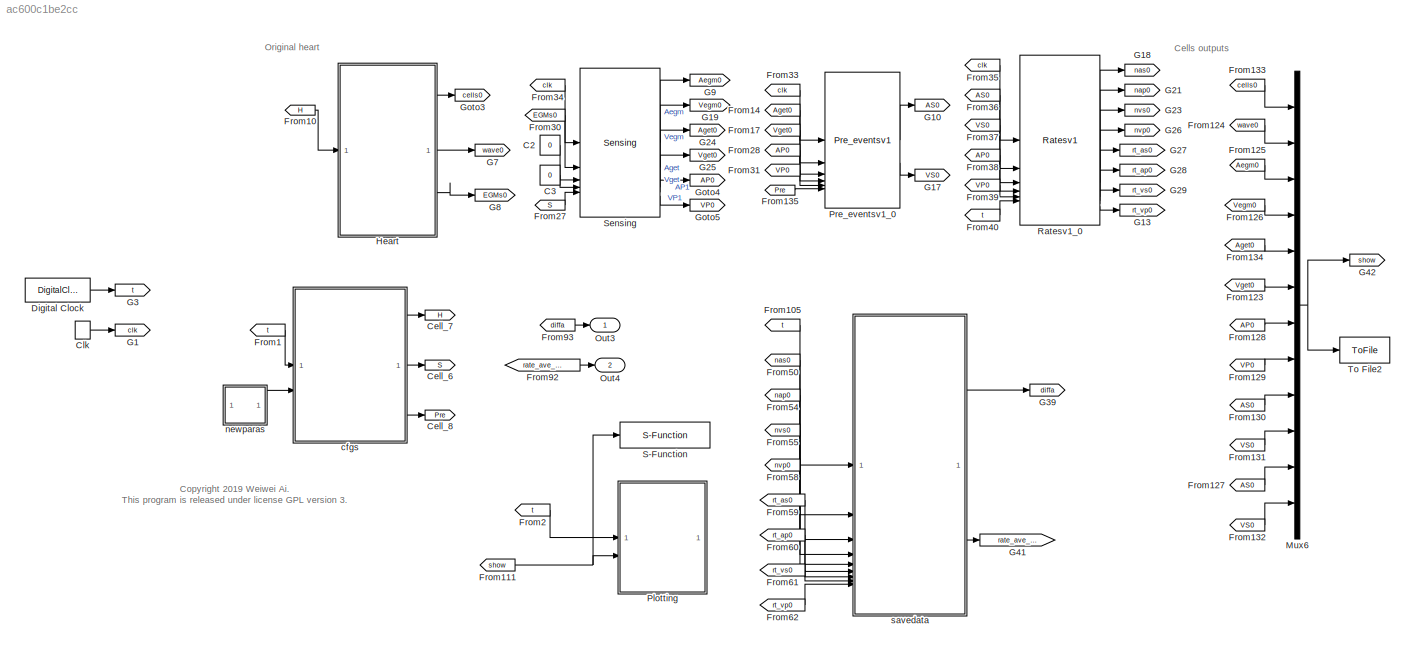
MODEL slx_ac600c1be2cc
KIND model
CONFIG AbsTol = auto
CONFIG EnableMultiTasking = off
CONFIG FixedStep = 0.0005
CONFIG MaxStep = auto
CONFIG MinStep = auto
CONFIG RelTol = 1e-3
CONFIG SampleTimeConstraint = Unconstrained
CONFIG SolverName = FixedStepAuto
CONFIG StartTime = 0.0
CONFIG StopTime = 4
BLOCK [Constant] C2
  Value = 0
BLOCK [Constant] C3
  Value = 0
BLOCK [Goto] Cell_6
  GotoTag = S
BLOCK [Goto] Cell_7
  GotoTag = H
BLOCK [Goto] Cell_8
  GotoTag = Pre
BLOCK [DiscretePulseGenerator] Clk
  Period = 1
  PulseType = Time based
  PulseWidth = 50
BLOCK [DigitalClock] Digital Clock
  SampleTime = stepsize
BLOCK [From] From1
  GotoTag = t
BLOCK [From] From10
  GotoTag = H
BLOCK [From] From105
  GotoTag = t
BLOCK [From] From111
  GotoTag = show
BLOCK [From] From123
  GotoTag = Vget0
BLOCK [From] From124
  GotoTag = wave0
BLOCK [From] From125
  GotoTag = Aegm0
BLOCK [From] From126
  GotoTag = Vegm0
BLOCK [From] From127
  GotoTag = AS0
BLOCK [From] From128
  GotoTag = AP0
BLOCK [From] From129
  GotoTag = VP0
BLOCK [From] From130
  GotoTag = AS0
BLOCK [From] From131
  GotoTag = VS0
BLOCK [From] From132
  GotoTag = VS0
BLOCK [From] From133
  GotoTag = cells0
BLOCK [From] From134
  GotoTag = Aget0
BLOCK [From] From135
  GotoTag = Pre
BLOCK [From] From14
  GotoTag = Aget0
BLOCK [From] From17
  GotoTag = Vget0
BLOCK [From] From2
  GotoTag = t
BLOCK [From] From27
  GotoTag = S
BLOCK [From] From28
  GotoTag = AP0
BLOCK [From] From30
  GotoTag = EGMs0
BLOCK [From] From31
  GotoTag = VP0
BLOCK [From] From33
  GotoTag = clk
BLOCK [From] From34
  GotoTag = clk
BLOCK [From] From35
  GotoTag = clk
BLOCK [From] From36
  GotoTag = AS0
BLOCK [From] From37
  GotoTag = VS0
BLOCK [From] From38
  GotoTag = AP0
BLOCK [From] From39
  GotoTag = VP0
BLOCK [From] From40
  GotoTag = t
BLOCK [From] From50
  GotoTag = nas0
BLOCK [From] From54
  GotoTag = nap0
BLOCK [From] From55
  GotoTag = nvs0
BLOCK [From] From58
  GotoTag = nvp0
BLOCK [From] From59
  GotoTag = rt_as0
BLOCK [From] From60
  GotoTag = rt_ap0
BLOCK [From] From61
  GotoTag = rt_vs0
BLOCK [From] From62
  GotoTag = rt_vp0
BLOCK [From] From92
  GotoTag = rate_ave_vp
BLOCK [From] From93
  GotoTag = diffa
BLOCK [Goto] G1
  GotoTag = clk
BLOCK [Goto] G10
  GotoTag = AS0
BLOCK [Goto] G13
  GotoTag = rt_vp0
BLOCK [Goto] G17
  GotoTag = VS0
BLOCK [Goto] G18
  GotoTag = nas0
BLOCK [Goto] G19
  GotoTag = Vegm0
BLOCK [Goto] G21
  GotoTag = nap0
BLOCK [Goto] G23
  GotoTag = nvs0
BLOCK [Goto] G24
  GotoTag = Aget0
BLOCK [Goto] G25
  GotoTag = Vget0
BLOCK [Goto] G26
  GotoTag = nvp0
BLOCK [Goto] G27
  GotoTag = rt_as0
BLOCK [Goto] G28
  GotoTag = rt_ap0
BLOCK [Goto] G29
  GotoTag = rt_vs0
BLOCK [Goto] G3
  GotoTag = t
BLOCK [Goto] G39
  GotoTag = diffa
BLOCK [Goto] G41
  GotoTag = rate_ave_vp
BLOCK [Goto] G42
  GotoTag = show
BLOCK [Goto] G7
  GotoTag = wave0
BLOCK [Goto] G8
  GotoTag = EGMs0
BLOCK [Goto] G9
  GotoTag = Aegm0
BLOCK [Goto] Goto3
  GotoTag = cells0
BLOCK [Goto] Goto4
  GotoTag = AP0
BLOCK [Goto] Goto5
  GotoTag = VP0
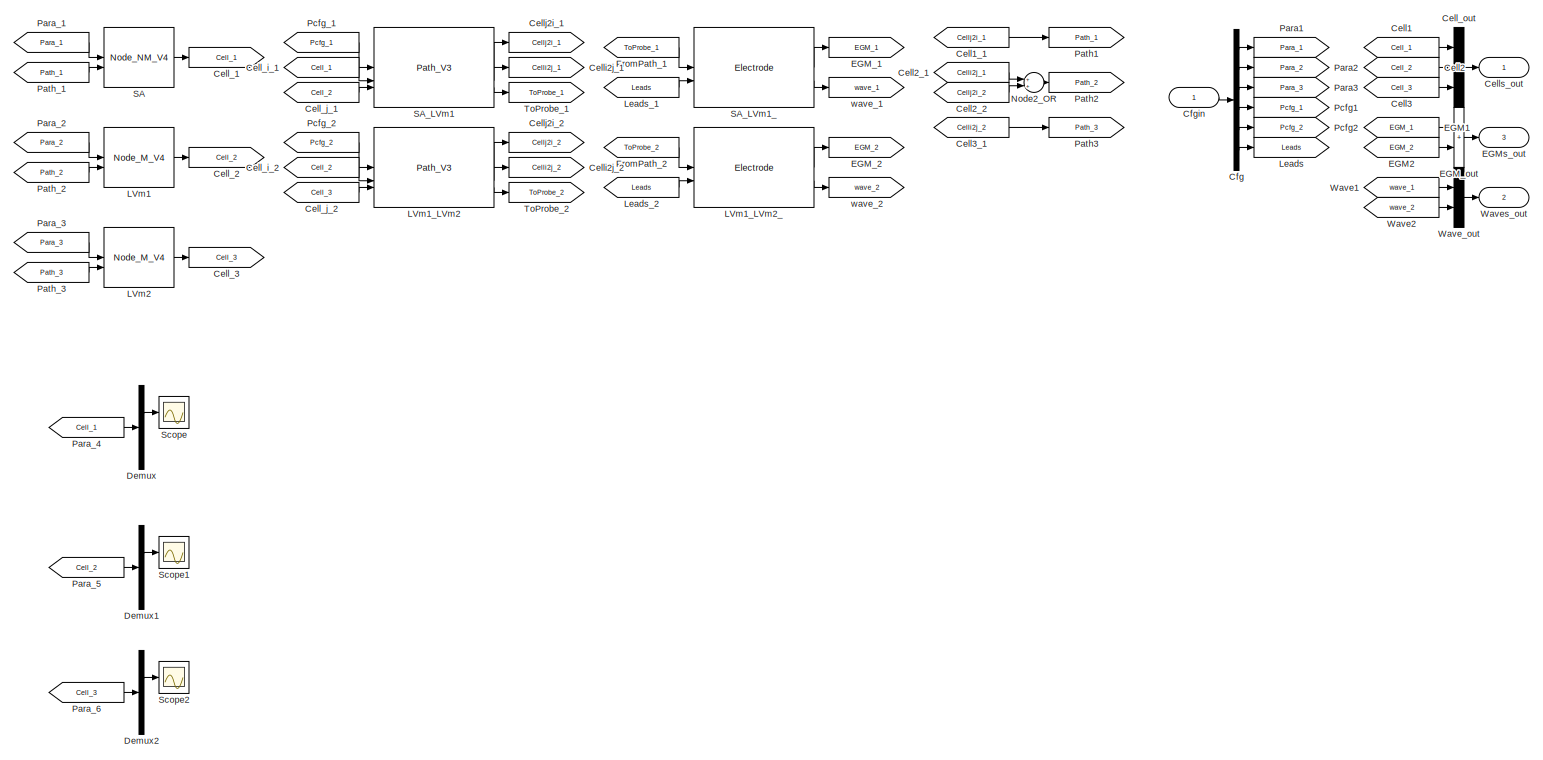
[diagram: Heart - part 1/1, most of the canvas]
BLOCK [SubSystem] Heart
BLOCK [From] Heart/Cell1
  GotoTag = Cell_1
BLOCK [From] Heart/Cell1_1
  GotoTag = Cellj2i_1
BLOCK [From] Heart/Cell2
  GotoTag = Cell_2
BLOCK [From] Heart/Cell2_1
  GotoTag = Celli2j_1
BLOCK [From] Heart/Cell2_2
  GotoTag = Cellj2i_2
BLOCK [From] Heart/Cell3
  GotoTag = Cell_3
BLOCK [From] Heart/Cell3_1
  GotoTag = Celli2j_2
BLOCK [Goto] Heart/Cell_1
  GotoTag = Cell_1
BLOCK [Goto] Heart/Cell_2
  GotoTag = Cell_2
BLOCK [Goto] Heart/Cell_3
  GotoTag = Cell_3
BLOCK [From] Heart/Cell_i_1
  GotoTag = Cell_1
BLOCK [From] Heart/Cell_i_2
  GotoTag = Cell_2
BLOCK [From] Heart/Cell_j_1
  GotoTag = Cell_2
BLOCK [From] Heart/Cell_j_2
  GotoTag = Cell_3
BLOCK [Mux] Heart/Cell_out
  DisplayOption = bar
  Inputs = 3
BLOCK [Goto] Heart/Celli2j_1
  GotoTag = Celli2j_1
BLOCK [Goto] Heart/Celli2j_2
  GotoTag = Celli2j_2
BLOCK [Goto] Heart/Cellj2i_1
  GotoTag = Cellj2i_1
BLOCK [Goto] Heart/Cellj2i_2
  GotoTag = Cellj2i_2
BLOCK [Outport] Heart/Cells_out
BLOCK [Demux] Heart/Cfg
  Outputs = [50,25,25,11,11,28]
BLOCK [Inport] Heart/Cfgin
BLOCK [Demux] Heart/Demux
  Outputs = 5
BLOCK [Demux] Heart/Demux1
  Outputs = 5
BLOCK [Demux] Heart/Demux2
  Outputs = 5
BLOCK [From] Heart/EGM1
  GotoTag = EGM_1
BLOCK [From] Heart/EGM2
  GotoTag = EGM_2
BLOCK [Goto] Heart/EGM_1
  GotoTag = EGM_1
BLOCK [Goto] Heart/EGM_2
  GotoTag = EGM_2
BLOCK [Sum] Heart/EGM_out
  IconShape = rectangular
  Inputs = 2
BLOCK [Outport] Heart/EGMs_out
  Port = 3
BLOCK [From] Heart/FromPath_1
  GotoTag = ToProbe_1
BLOCK [From] Heart/FromPath_2
  GotoTag = ToProbe_2
BLOCK [Reference] Heart/LVm1  REF=Libs/Node_M_V4
  SourceBlock = Libs/Node_M_V4
  SourceType = SubSystem
BLOCK [Reference] Heart/LVm1_LVm2  REF=Libs/Path_V3
  SourceBlock = Libs/Path_V3
  SourceType = SubSystem
BLOCK [Reference] Heart/LVm1_LVm2_  REF=Libs/Electrode
  SourceBlock = Libs/Electrode
  SourceType = SubSystem
BLOCK [Reference] Heart/LVm2  REF=Libs/Node_M_V4
  SourceBlock = Libs/Node_M_V4
  SourceType = SubSystem
BLOCK [Goto] Heart/Leads
  GotoTag = Leads
BLOCK [From] Heart/Leads_1
  GotoTag = Leads
BLOCK [From] Heart/Leads_2
  GotoTag = Leads
BLOCK [Sum] Heart/Node2_OR
  Inputs = 2
BLOCK [Goto] Heart/Para1
  GotoTag = Para_1
BLOCK [Goto] Heart/Para2
  GotoTag = Para_2
BLOCK [Goto] Heart/Para3
  GotoTag = Para_3
BLOCK [From] Heart/Para_1
  GotoTag = Para_1
BLOCK [From] Heart/Para_2
  GotoTag = Para_2
BLOCK [From] Heart/Para_3
  GotoTag = Para_3
BLOCK [From] Heart/Para_4
  GotoTag = Cell_1
BLOCK [From] Heart/Para_5
  GotoTag = Cell_2
BLOCK [From] Heart/Para_6
  GotoTag = Cell_3
BLOCK [Goto] Heart/Path1
  GotoTag = Path_1
BLOCK [Goto] Heart/Path2
  GotoTag = Path_2
BLOCK [Goto] Heart/Path3
  GotoTag = Path_3
BLOCK [From] Heart/Path_1
  GotoTag = Path_1
BLOCK [From] Heart/Path_2
  GotoTag = Path_2
BLOCK [From] Heart/Path_3
  GotoTag = Path_3
BLOCK [Goto] Heart/Pcfg1
  GotoTag = Pcfg_1
BLOCK [Goto] Heart/Pcfg2
  GotoTag = Pcfg_2
BLOCK [From] Heart/Pcfg_1
  GotoTag = Pcfg_1
BLOCK [From] Heart/Pcfg_2
  GotoTag = Pcfg_2
BLOCK [Reference] Heart/SA  REF=Libs/Node_NM_V4
  SourceBlock = Libs/Node_NM_V4
  SourceType = SubSystem
BLOCK [Reference] Heart/SA_LVm1  REF=Libs/Path_V3
  SourceBlock = Libs/Path_V3
  SourceType = SubSystem
BLOCK [Reference] Heart/SA_LVm1_  REF=Libs/Electrode
  SourceBlock = Libs/Electrode
  SourceType = SubSystem
BLOCK [Scope] Heart/Scope
  ActiveDisplayYMaximum = 138.22895785342837
  ActiveDisplayYMinimum = -15.358773094825372
  DataLogging = on
  Floating = off
  GraphicalSettings = {"Style":{"BackgroundColor":[0.12941176470588237,0.12941176470588237,0.12941176470588237],"AxesColor":[0.07058823529411765,0.07058823529411765,0.07058823529411765],"LabelsColor":[0.8509803921568627,0.8509803921568627,0.8509803921568627],"PreserveColors":false,"Visible":[true],"LineStyle":["-"],"LineWidth":[1.5],"BarWidth":[0.9],"LineColor":["auto"],"LineFaceAlpha":[1],"LineEdgeAlpha":[1],"Marker":...<+1998ch>
  MultipleDisplayCache = [{"MaxYLimMag":138.22895785342837,"MaxYLimReal":138.22895785342837,"MinYLimMag":0,"MinYLimReal":-15.358773094825372,"PlotAsMagnitudePhase":false,"ShowGrid":true,"ShowLegend":false,"Title":"%<SignalLabel>","YLabel":""}]  <repeated x3 — deduplicated; at blocks: Scope, Scope1, Scope2>
  NumInputPorts = 1
  ScopeFrameLocation = window
  WasSavedAsWebScope = on
  WindowPosition = [573.000000,323.000000,560.000000,429.000000,]
BLOCK [Scope] Heart/Scope1
  ActiveDisplayYMaximum = 138.22895785342837
  ActiveDisplayYMinimum = -15.358773094825372
  DataLogging = on
  DataLoggingVariableName = ScopeData1
  Floating = off
  GraphicalSettings = {"Style":{"BackgroundColor":[0.12941176470588237,0.12941176470588237,0.12941176470588237],"AxesColor":[0.07058823529411765,0.07058823529411765,0.07058823529411765],"LabelsColor":[0.8509803921568627,0.8509803921568627,0.8509803921568627],"PreserveColors":false,"Visible":[true,true,true,true,true,true,true],"LineStyle":["-","-","-","-","-","-","-"],"LineWidth":[1.5,1.5,1.5,1.5,1.5,1.5,1.5],"BarWidth...<+2580ch>
  NumInputPorts = 1
  ScopeFrameLocation = window
  WasSavedAsWebScope = on
  WindowPosition = [573.000000,323.000000,560.000000,420.000000,]
BLOCK [Scope] Heart/Scope2
  ActiveDisplayYMaximum = 138.22895785342837
  ActiveDisplayYMinimum = -15.358773094825372
  DataLogging = on
  DataLoggingVariableName = ScopeData2
  Floating = off
  GraphicalSettings = {"Style":{"BackgroundColor":[0.12941176470588237,0.12941176470588237,0.12941176470588237],"AxesColor":[0.07058823529411765,0.07058823529411765,0.07058823529411765],"LabelsColor":[0.8509803921568627,0.8509803921568627,0.8509803921568627],"PreserveColors":false,"Visible":[true,true,true,true,true,true,true],"LineStyle":["-","-","-","-","-","-","-"],"LineWidth":[1.5,1.5,1.5,1.5,1.5,1.5,1.5],"BarWidth...<+2580ch>
  NumInputPorts = 1
  ScopeFrameLocation = window
  WasSavedAsWebScope = on
  WindowPosition = [573.000000,323.000000,560.000000,420.000000,]
BLOCK [Goto] Heart/ToProbe_1
  GotoTag = ToProbe_1
BLOCK [Goto] Heart/ToProbe_2
  GotoTag = ToProbe_2
BLOCK [From] Heart/Wave1
  GotoTag = wave_1
BLOCK [From] Heart/Wave2
  GotoTag = wave_2
BLOCK [Mux] Heart/Wave_out
  DisplayOption = bar
  Inputs = 2
BLOCK [Outport] Heart/Waves_out
  Port = 2
BLOCK [Goto] Heart/wave_1
  GotoTag = wave_1
BLOCK [Goto] Heart/wave_2
  GotoTag = wave_2
BLOCK [Mux] Mux6
  DisplayOption = bar
  Inputs = 12
BLOCK [Outport] Out3
BLOCK [Outport] Out4
  Port = 2
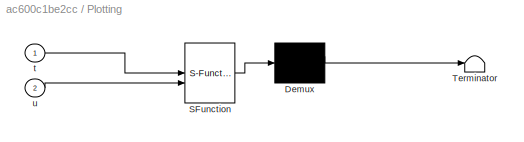
BLOCK [SubSystem] Plotting
  ErrorFcn = Stateflow.Translate.translate
  PermitHierarchicalResolution = ExplicitOnly
  SFBlockType = MATLAB Function
  SystemSampleTime = stepsize*5
  TreatAsAtomicUnit = on
BLOCK [Demux] Plotting/ Demux 
  Outputs = 1
BLOCK [S-Function] Plotting/ SFunction 
  EnableBusSupport = off
  FunctionName = sf_sfun
  PortCounts = [2 1]
  SFcnIsStateOwnerBlock = off
  SFunctionDeploymentMode = off
  Tag = Stateflow S-Function 2
BLOCK [Terminator] Plotting/ Terminator 
BLOCK [Inport] Plotting/t
BLOCK [Inport] Plotting/u
  Port = 2
BLOCK [Reference] Pre_eventsv1_0  REF=Libs_unified/Pre_eventsv1
  SourceBlock = Libs_unified/Pre_eventsv1
  SourceType = SubSystem
BLOCK [Reference] Ratesv1_0  REF=Libs_unified/Ratesv1
  SourceBlock = Libs_unified/Ratesv1
  SourceType = SubSystem
BLOCK [S-Function] S-Function
  Commented = on
  EnableBusSupport = off
  FunctionName = SaveTrace_sfcn
  Parameters = 1
  SFcnIsStateOwnerBlock = off
  SFunctionDeploymentMode = off
BLOCK [Reference] Sensing  REF=Libs_unified/Sensing
  SourceBlock = Libs_unified/Sensing
  SourceType = SubSystem
BLOCK [ToFile] To File2
  Decimation = 2
  Filename = Cells0.mat
  MatrixName = cells
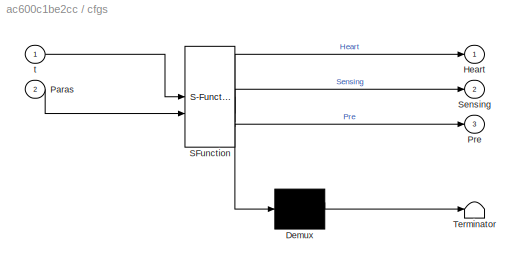
BLOCK [SubSystem] cfgs
  ErrorFcn = Stateflow.Translate.translate
  PermitHierarchicalResolution = ExplicitOnly
  SFBlockType = Chart
  TreatAsAtomicUnit = on
BLOCK [Demux] cfgs/ Demux 
  Outputs = 1
BLOCK [S-Function] cfgs/ SFunction 
  EnableBusSupport = off
  FunctionName = sf_sfun
  Parameters = AVI,LRI,PVARP,URI,VRP,cfg_length,pNode_length,pPath_length
  PortCounts = [2 4]
  SFcnIsStateOwnerBlock = off
  SFunctionDeploymentMode = off
  Tag = Stateflow S-Function 1
BLOCK [Terminator] cfgs/ Terminator 
BLOCK [Outport] cfgs/Heart
BLOCK [Inport] cfgs/Paras
  Port = 2
BLOCK [Outport] cfgs/Pre
  Port = 3
BLOCK [Outport] cfgs/Sensing
  Port = 2
BLOCK [Inport] cfgs/t
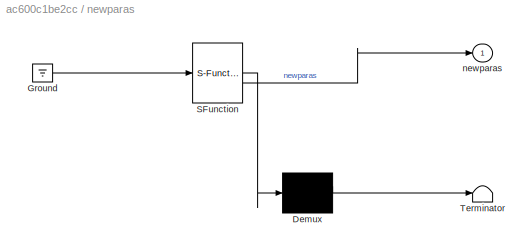
BLOCK [SubSystem] newparas
  ErrorFcn = Stateflow.Translate.translate
  PermitHierarchicalResolution = ExplicitOnly
  SFBlockType = MATLAB Function
  TreatAsAtomicUnit = on
BLOCK [Demux] newparas/ Demux 
  Outputs = 1
BLOCK [Ground] newparas/ Ground 
BLOCK [S-Function] newparas/ SFunction 
  EnableBusSupport = off
  FunctionName = sf_sfun
  Parameters = paras_length
  PortCounts = [1 2]
  SFcnIsStateOwnerBlock = off
  SFunctionDeploymentMode = off
  Tag = Stateflow S-Function 4
BLOCK [Terminator] newparas/ Terminator 
BLOCK [Outport] newparas/newparas
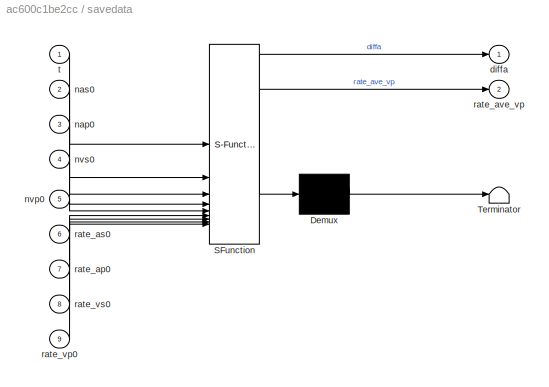
BLOCK [SubSystem] savedata
  ErrorFcn = Stateflow.Translate.translate
  PermitHierarchicalResolution = ExplicitOnly
  SFBlockType = Chart
  TreatAsAtomicUnit = on
BLOCK [Demux] savedata/ Demux 
  Outputs = 1
BLOCK [S-Function] savedata/ SFunction 
  EnableBusSupport = off
  FunctionName = sf_sfun
  PortCounts = [9 3]
  SFcnIsStateOwnerBlock = off
  SFunctionDeploymentMode = off
  Tag = Stateflow S-Function 6
BLOCK [Terminator] savedata/ Terminator 
BLOCK [Outport] savedata/diffa
BLOCK [Inport] savedata/nap0
  Port = 3
BLOCK [Inport] savedata/nas0
  Port = 2
BLOCK [Inport] savedata/nvp0
  Port = 5
BLOCK [Inport] savedata/nvs0
  Port = 4
BLOCK [Inport] savedata/rate_ap0
  Port = 7
BLOCK [Inport] savedata/rate_as0
  Port = 6
BLOCK [Outport] savedata/rate_ave_vp
  Port = 2
BLOCK [Inport] savedata/rate_vp0
  Port = 9
BLOCK [Inport] savedata/rate_vs0
  Port = 8
BLOCK [Inport] savedata/t
ANNOTATION (root): Cells outputs
ANNOTATION (root): <copyright redacted>
ANNOTATION (root): Original heart
LINE C2:1 -> Sensing:3
LINE C3:1 -> Sensing:4
LINE Clk:1 -> G1:1
LINE Digital Clock:1 -> G3:1
LINE From105:1 -> savedata:1
LINE From10:1 -> Heart:1
NET From111:1 -> Plotting:2, S-Function:1
LINE From123:1 -> Mux6:6
LINE From124:1 -> Mux6:2
LINE From125:1 -> Mux6:3
LINE From126:1 -> Mux6:4
LINE From127:1 -> Mux6:11
LINE From128:1 -> Mux6:7
LINE From129:1 -> Mux6:8
LINE From130:1 -> Mux6:9
LINE From131:1 -> Mux6:10
LINE From132:1 -> Mux6:12
LINE From133:1 -> Mux6:1
LINE From134:1 -> Mux6:5
LINE From135:1 -> Pre_eventsv1_0:6
LINE From14:1 -> Pre_eventsv1_0:2
LINE From17:1 -> Pre_eventsv1_0:3
LINE From1:1 -> cfgs:1
LINE From27:1 -> Sensing:5
LINE From28:1 -> Pre_eventsv1_0:4
LINE From2:1 -> Plotting:1
LINE From30:1 -> Sensing:2
LINE From31:1 -> Pre_eventsv1_0:5
LINE From33:1 -> Pre_eventsv1_0:1
LINE From34:1 -> Sensing:1
LINE From35:1 -> Ratesv1_0:1
LINE From36:1 -> Ratesv1_0:2
LINE From37:1 -> Ratesv1_0:3
LINE From38:1 -> Ratesv1_0:4
LINE From39:1 -> Ratesv1_0:5
LINE From40:1 -> Ratesv1_0:6
LINE From50:1 -> savedata:2
LINE From54:1 -> savedata:3
LINE From55:1 -> savedata:4
LINE From58:1 -> savedata:5
LINE From59:1 -> savedata:6
LINE From60:1 -> savedata:7
LINE From61:1 -> savedata:8
LINE From62:1 -> savedata:9
LINE From92:1 -> Out4:1
LINE From93:1 -> Out3:1
LINE Heart/Cell1:1 -> Heart/Cell_out:1
LINE Heart/Cell1_1:1 -> Heart/Path1:1
LINE Heart/Cell2:1 -> Heart/Cell_out:2
LINE Heart/Cell2_1:1 -> Heart/Node2_OR:1
LINE Heart/Cell2_2:1 -> Heart/Node2_OR:2
LINE Heart/Cell3:1 -> Heart/Cell_out:3
LINE Heart/Cell3_1:1 -> Heart/Path3:1
LINE Heart/Cell_i_1:1 -> Heart/SA_LVm1:2
LINE Heart/Cell_i_2:1 -> Heart/LVm1_LVm2:2
LINE Heart/Cell_j_1:1 -> Heart/SA_LVm1:3
LINE Heart/Cell_j_2:1 -> Heart/LVm1_LVm2:3
LINE Heart/Cell_out:1 -> Heart/Cells_out:1
LINE Heart/Cfg:1 -> Heart/Para1:1
LINE Heart/Cfg:2 -> Heart/Para2:1
LINE Heart/Cfg:3 -> Heart/Para3:1
LINE Heart/Cfg:4 -> Heart/Pcfg1:1
LINE Heart/Cfg:5 -> Heart/Pcfg2:1
LINE Heart/Cfg:6 -> Heart/Leads:1
LINE Heart/Cfgin:1 -> Heart/Cfg:1
LINE Heart/Demux1:2 -> Heart/Scope1:1
LINE Heart/Demux2:2 -> Heart/Scope2:1
LINE Heart/Demux:2 -> Heart/Scope:1
LINE Heart/EGM1:1 -> Heart/EGM_out:1
LINE Heart/EGM2:1 -> Heart/EGM_out:2
LINE Heart/EGM_out:1 -> Heart/EGMs_out:1
LINE Heart/FromPath_1:1 -> Heart/SA_LVm1_:1
LINE Heart/FromPath_2:1 -> Heart/LVm1_LVm2_:1
LINE Heart/LVm1:1 -> Heart/Cell_2:1
LINE Heart/LVm1_LVm2:1 -> Heart/Cellj2i_2:1
LINE Heart/LVm1_LVm2:2 -> Heart/Celli2j_2:1
LINE Heart/LVm1_LVm2:3 -> Heart/ToProbe_2:1
LINE Heart/LVm1_LVm2_:1 -> Heart/EGM_2:1
LINE Heart/LVm1_LVm2_:2 -> Heart/wave_2:1
LINE Heart/LVm2:1 -> Heart/Cell_3:1
LINE Heart/Leads_1:1 -> Heart/SA_LVm1_:2
LINE Heart/Leads_2:1 -> Heart/LVm1_LVm2_:2
LINE Heart/Node2_OR:1 -> Heart/Path2:1
LINE Heart/Para_1:1 -> Heart/SA:1
LINE Heart/Para_2:1 -> Heart/LVm1:1
LINE Heart/Para_3:1 -> Heart/LVm2:1
LINE Heart/Para_4:1 -> Heart/Demux:1
LINE Heart/Para_5:1 -> Heart/Demux1:1
LINE Heart/Para_6:1 -> Heart/Demux2:1
LINE Heart/Path_1:1 -> Heart/SA:2
LINE Heart/Path_2:1 -> Heart/LVm1:2
LINE Heart/Path_3:1 -> Heart/LVm2:2
LINE Heart/Pcfg_1:1 -> Heart/SA_LVm1:1
LINE Heart/Pcfg_2:1 -> Heart/LVm1_LVm2:1
LINE Heart/SA:1 -> Heart/Cell_1:1
LINE Heart/SA_LVm1:1 -> Heart/Cellj2i_1:1
LINE Heart/SA_LVm1:2 -> Heart/Celli2j_1:1
LINE Heart/SA_LVm1:3 -> Heart/ToProbe_1:1
LINE Heart/SA_LVm1_:1 -> Heart/EGM_1:1
LINE Heart/SA_LVm1_:2 -> Heart/wave_1:1
LINE Heart/Wave1:1 -> Heart/Wave_out:1
LINE Heart/Wave2:1 -> Heart/Wave_out:2
LINE Heart/Wave_out:1 -> Heart/Waves_out:1
LINE Heart:1 -> Goto3:1
LINE Heart:2 -> G7:1
LINE Heart:3 -> G8:1
NET Mux6:1 -> G42:1, To File2:1
LINE Pre_eventsv1_0:1 -> G10:1
LINE Pre_eventsv1_0:2 -> G17:1
LINE Ratesv1_0:1 -> G18:1
LINE Ratesv1_0:2 -> G21:1
LINE Ratesv1_0:3 -> G23:1
LINE Ratesv1_0:4 -> G26:1
LINE Ratesv1_0:5 -> G27:1
LINE Ratesv1_0:6 -> G28:1
LINE Ratesv1_0:7 -> G29:1
LINE Ratesv1_0:8 -> G13:1
LINE Sensing:1 -> G9:1
LINE Sensing:2 -> G19:1
LINE Sensing:3 -> G24:1
LINE Sensing:4 -> G25:1
LINE Sensing:5 -> Goto4:1
LINE Sensing:6 -> Goto5:1
LINE cfgs:1 -> Cell_7:1
LINE cfgs:2 -> Cell_6:1
LINE cfgs:3 -> Cell_8:1
LINE newparas:1 -> cfgs:2
LINE savedata:1 -> G39:1
LINE savedata:2 -> G41:1
note: NET lines group one-source signal fan-out (src -> all destinations, sorted); 1:1 wires keep LINE
CHART cfgs states=6 transitions=2
  STATE_LABEL 'Scfg= Scfgf'
  STATE_LABEL "SCRIPT:\nfunction Scfg= Scfgf\n\n%% desired\nxa=1;\nxc=0.05;\nxc1=0.1;\nxd=1;\nxe=0.1;\navd=100;\nvad=100;\nuni_a=1;\nSens_a=0.6;\nAmp_ap=500;\nuni_v=1;\nSens_v=2.8;\nAmp_vp=500;\n\nScfg=[xa xc xc1 xd xe avd vad uni_a Sens_a Amp_ap uni_v Sens_v Amp_vp]';\n\nend"
  STATE_LABEL 'Preout = Precfg'
  STATE_LABEL 'SCRIPT:\nfunction Preout = Precfg\n% \n% LRI=1000;\n% AVI=170;\n% URI=500;\n% VRP=230;\n% PVARP=250;\nPreout=[VRP PVARP];\n\nend'
  STATE_LABEL 'pUpdate(Parasin)'
  STATE_LABEL "SCRIPT:\n%% Get the index of the parameter\nfunction pUpdate(Parasin)\n%#codegen\ncoder.extrinsic('evalin');\ncoder.extrinsic('assignin');\nNodein=zeros(1,pNode_length); % The total number of cell cfg ports\nNodein=evalin('base', 'pNode');\nPathin=zeros(1,pPath_length); % The total number of path cfg ports\nPathin=evalin('base', 'pPath');\nfor n=1:pNode_length\n    m=Nodein(n);\n    Heart(m)=Parasin(n);\nend\n\n...<+135ch>"
  STATE_LABEL 'Hcfg   = LoadInit'
  STATE_LABEL "SCRIPT:\nfunction Hcfg   = LoadInit\n%#codegen\ncoder.extrinsic('evalin');\nHcfg1=zeros(1,cfg_length); % The total number of cfg ports\nHcfg1=evalin('base', 'cfgdata');\nHcfg=Hcfg1';\nend\n"
  STATE_LABEL 'Ini'
  STATE_LABEL 'wait'
CHART Plotting states=1 transitions=1
  STATE_LABEL 'eML_blk_kernel()'
  STATE_LABEL "SCRIPT:\nfunction fcn(t,u)\n%coder.extrinsic('evalin')\ncoder.extrinsic('updateGUIplots')\nfun = 'updateGUIplots';\nupdateGUIplots(t,u)\n%feval(fun,t,u)\nend\n"
CHART newparas states=1 transitions=1
  STATE_LABEL 'eML_blk_kernel()'
  STATE_LABEL "SCRIPT:\n\nfunction newparas= auto(paras_length)\n\ncoder.extrinsic('evalin');\n%par_length = evalin('base','paras_length')\nnewparas=zeros(1,paras_length); % The total number of cell cfg ports\nnewparas=evalin('base', 'pp');\n\nend"
CHART savedata states=3 transitions=4
  STATE_LABEL 'termi'
  STATE_LABEL 'difa'
  STATE_LABEL 'Ini'
CHART  states=0 transitions=0
CHART  states=0 transitions=0
CHART  states=0 transitions=0
CHART  states=0 transitions=0
